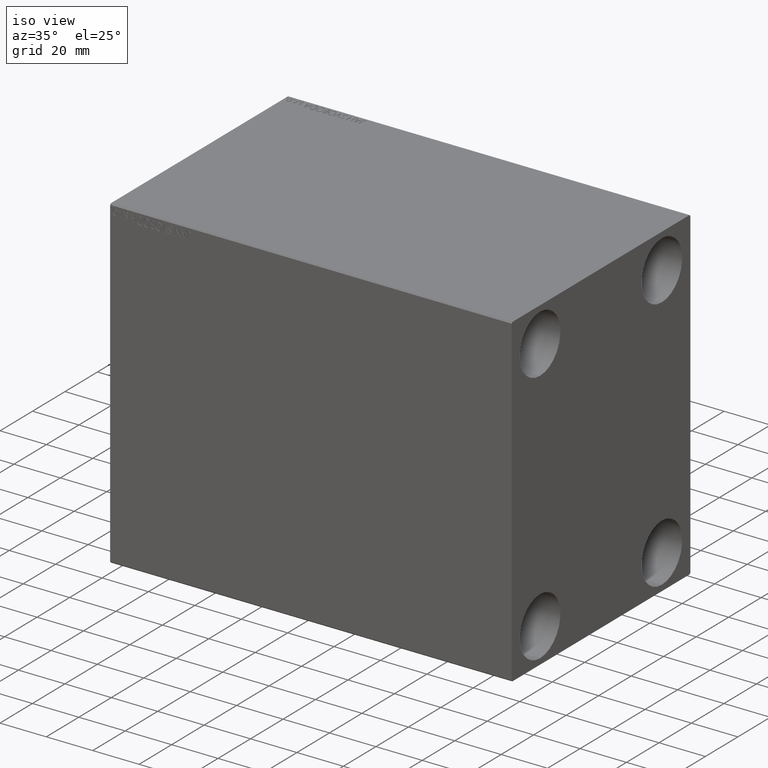
[diagram: clean part render]
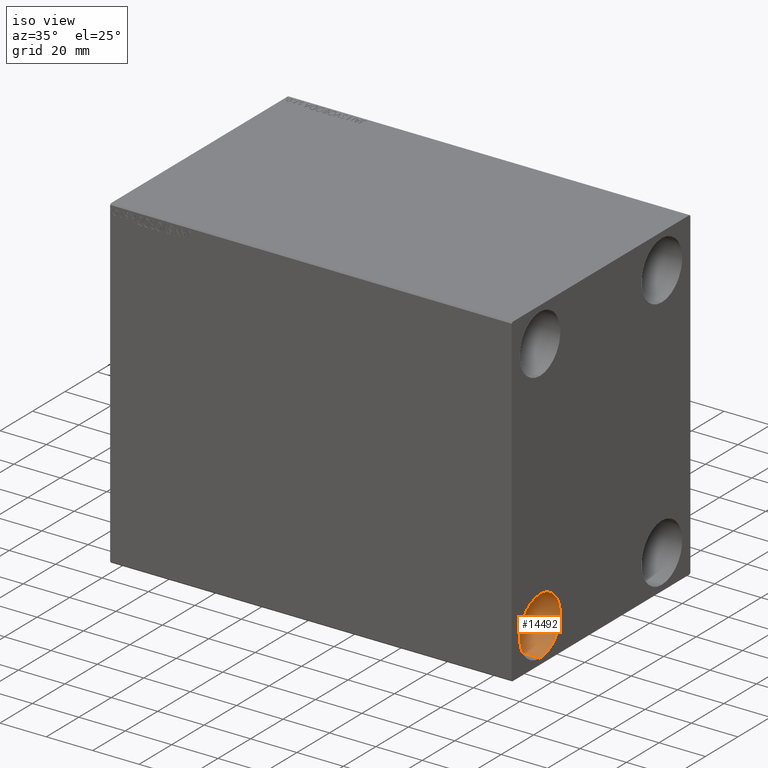
[diagram: same view with one face highlighted and labeled with its STEP entity id]
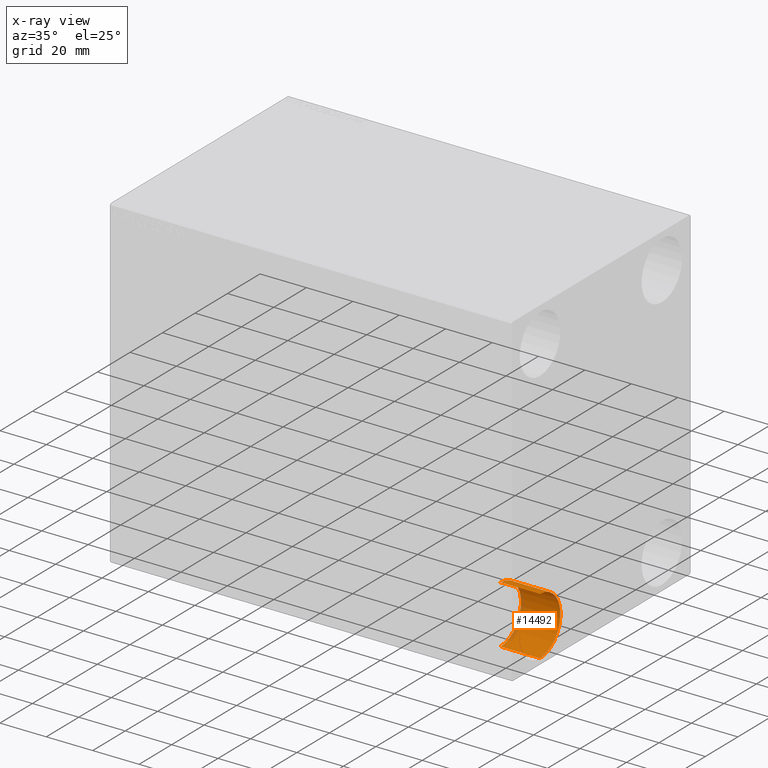
[diagram: x-ray of the same camera — body ghosted, the highlighted face saturated]
A machine part, iso view. The second image highlights one B-rep face of the part: STEP entity #14492.
The next image is the same camera in x-ray: the body ghosted, the highlighted face saturated — about 8% of this face is hidden behind the body in this view.
In plain terms, the highlighted cylindrical surface (edge-blend (fillet) strip) has radius 12.5 mm, axis along (1, 0, 0).
Its self-contained STEP definition (entity closure, byte-faithful):
#245 = EDGE_CURVE ( 'NONE', #22908, #4434, #12617, .T. ) ;
#717 = ORIENTED_EDGE ( 'NONE', *, *, #20459, .F. ) ;
#1029 = DIRECTION ( 'NONE',  ( -1.000000000000000000, -0.000000000000000000, -0.000000000000000000 ) ) ;
#1109 = CARTESIAN_POINT ( 'NONE',  ( 155.9999999999999716, -37.50000000000002132, -54.99999999999999289 ) ) ;
#3235 = DIRECTION ( 'NONE',  ( -1.000000000000000000, -0.000000000000000000, -0.000000000000000000 ) ) ;
#4058 = AXIS2_PLACEMENT_3D ( 'NONE', #5041, #1029, #11739 ) ;
#4434 = VERTEX_POINT ( 'NONE', #25374 ) ;
#5005 = AXIS2_PLACEMENT_3D ( 'NONE', #43729, #3235, #33731 ) ;
#5041 = CARTESIAN_POINT ( 'NONE',  ( 155.9999999999999716, -37.50000000000002132, -54.99999999999999289 ) ) ;
#6075 = CARTESIAN_POINT ( 'NONE',  ( 173.0000000000000000, -37.50000000000002132, -42.49999999999999289 ) ) ;
#8346 = CARTESIAN_POINT ( 'NONE',  ( 155.9999999999999716, -37.50000000000002132, -42.49999999999999289 ) ) ;
#11739 = DIRECTION ( 'NONE',  ( 0.000000000000000000, 0.000000000000000000, 1.000000000000000000 ) ) ;
#12422 = EDGE_CURVE ( 'NONE', #4434, #28417, #14108, .T. ) ;
#12617 = CIRCLE ( 'NONE', #4058, 12.49999999999999645 ) ;
#13157 = EDGE_LOOP ( 'NONE', ( #717, #33898, #19778, #24851 ) ) ;
#13649 = CARTESIAN_POINT ( 'NONE',  ( 155.9999999999999716, -37.50000000000002132, -67.49999999999998579 ) ) ;
#13941 = EDGE_CURVE ( 'NONE', #20837, #28417, #36256, .T. ) ;
#14108 = LINE ( 'NONE', #13649, #31251 ) ;
#14492 = ADVANCED_FACE ( 'NONE', ( #38068 ), #24719, .F. ) ;
#17491 = LINE ( 'NONE', #30828, #32067 ) ;
#19778 = ORIENTED_EDGE ( 'NONE', *, *, #12422, .T. ) ;
#20459 = EDGE_CURVE ( 'NONE', #22908, #20837, #17491, .T. ) ;
#20837 = VERTEX_POINT ( 'NONE', #6075 ) ;
#22908 = VERTEX_POINT ( 'NONE', #8346 ) ;
#24719 = CYLINDRICAL_SURFACE ( 'NONE', #37007, 12.49999999999999645 ) ;
#24851 = ORIENTED_EDGE ( 'NONE', *, *, #13941, .F. ) ;
#25374 = CARTESIAN_POINT ( 'NONE',  ( 155.9999999999999716, -37.50000000000002132, -67.49999999999998579 ) ) ;
#28417 = VERTEX_POINT ( 'NONE', #38784 ) ;
#30382 = DIRECTION ( 'NONE',  ( 1.000000000000000000, -0.000000000000000000, -0.000000000000000000 ) ) ;
#30828 = CARTESIAN_POINT ( 'NONE',  ( 155.9999999999999716, -37.50000000000002132, -42.49999999999999289 ) ) ;
#31251 = VECTOR ( 'NONE', #34766, 1000.000000000000000 ) ;
#32067 = VECTOR ( 'NONE', #30382, 1000.000000000000000 ) ;
#33731 = DIRECTION ( 'NONE',  ( 0.000000000000000000, 0.000000000000000000, 1.000000000000000000 ) ) ;
#33898 = ORIENTED_EDGE ( 'NONE', *, *, #245, .T. ) ;
#34766 = DIRECTION ( 'NONE',  ( 1.000000000000000000, -0.000000000000000000, -0.000000000000000000 ) ) ;
#36256 = CIRCLE ( 'NONE', #5005, 12.49999999999999645 ) ;
#37007 = AXIS2_PLACEMENT_3D ( 'NONE', #1109, #41832, #38283 ) ;
#38068 = FACE_OUTER_BOUND ( 'NONE', #13157, .T. ) ;
#38283 = DIRECTION ( 'NONE',  ( 0.000000000000000000, 0.000000000000000000, -1.000000000000000000 ) ) ;
#38784 = CARTESIAN_POINT ( 'NONE',  ( 173.0000000000000000, -37.50000000000002132, -67.49999999999998579 ) ) ;
#41832 = DIRECTION ( 'NONE',  ( 1.000000000000000000, -0.000000000000000000, -0.000000000000000000 ) ) ;
#43729 = CARTESIAN_POINT ( 'NONE',  ( 173.0000000000000000, -37.50000000000002132, -54.99999999999999289 ) ) ;